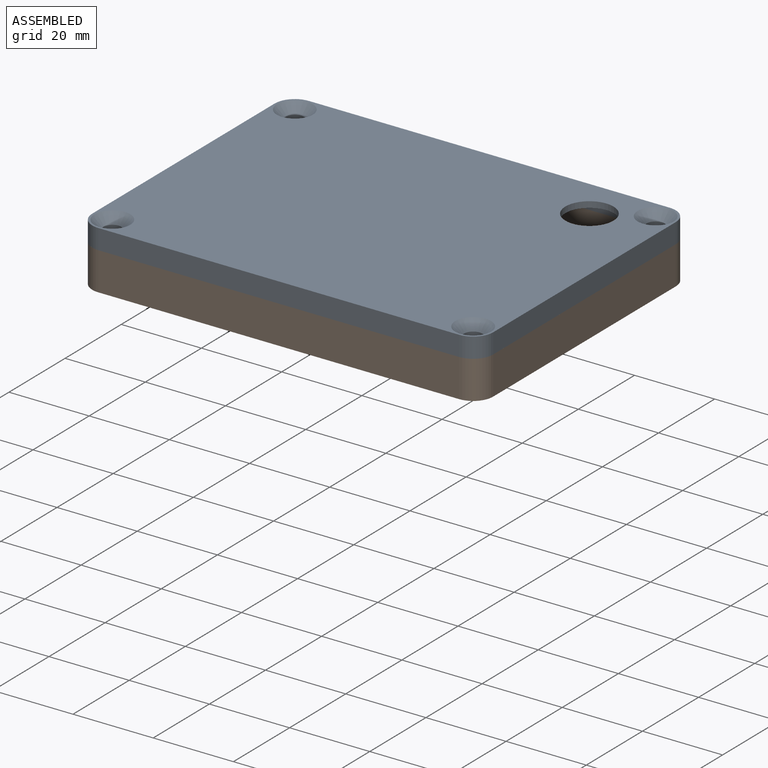
[diagram: assembled view]
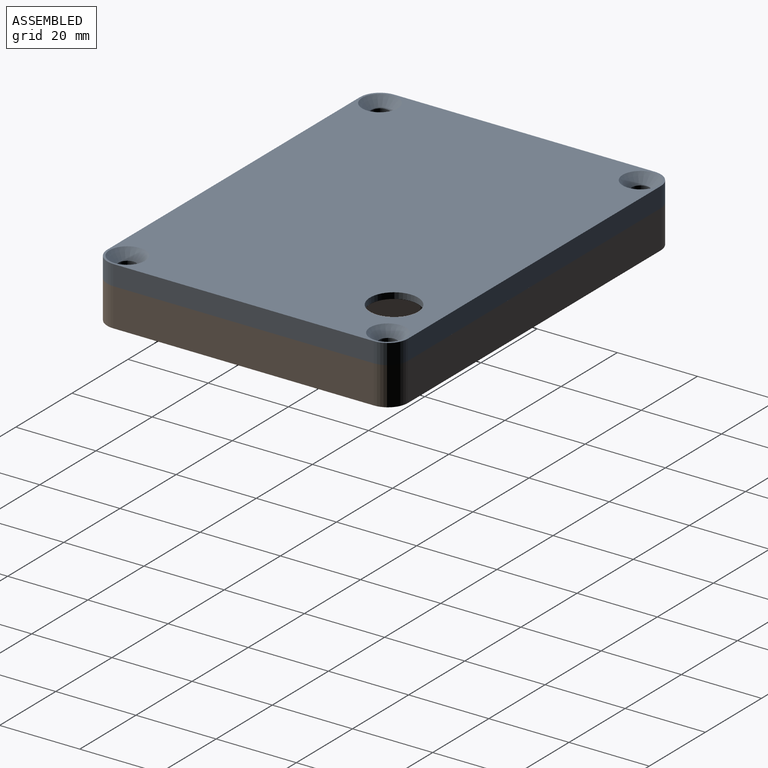
[diagram: assembled view, second angle]
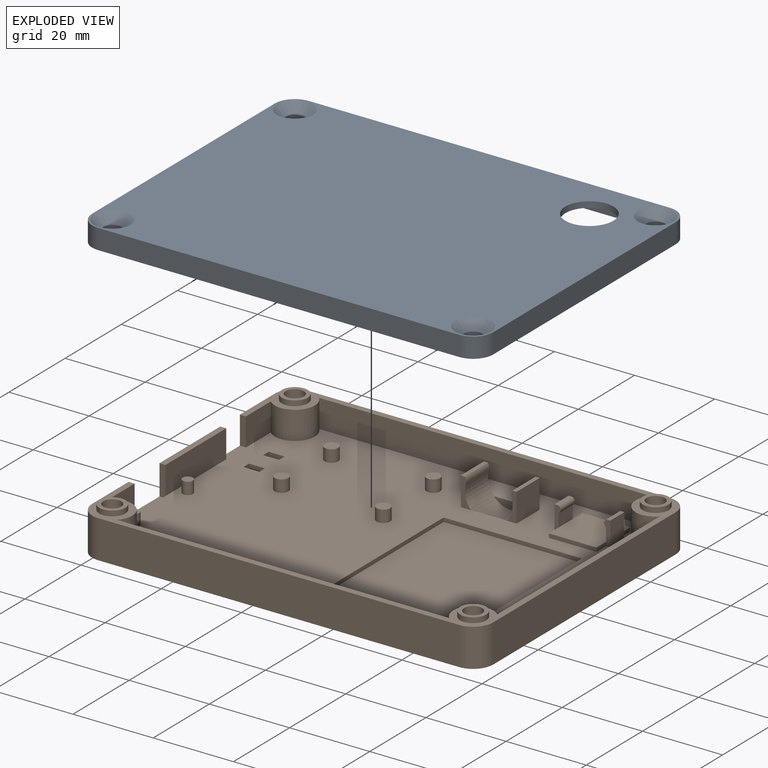
[diagram: exploded view]
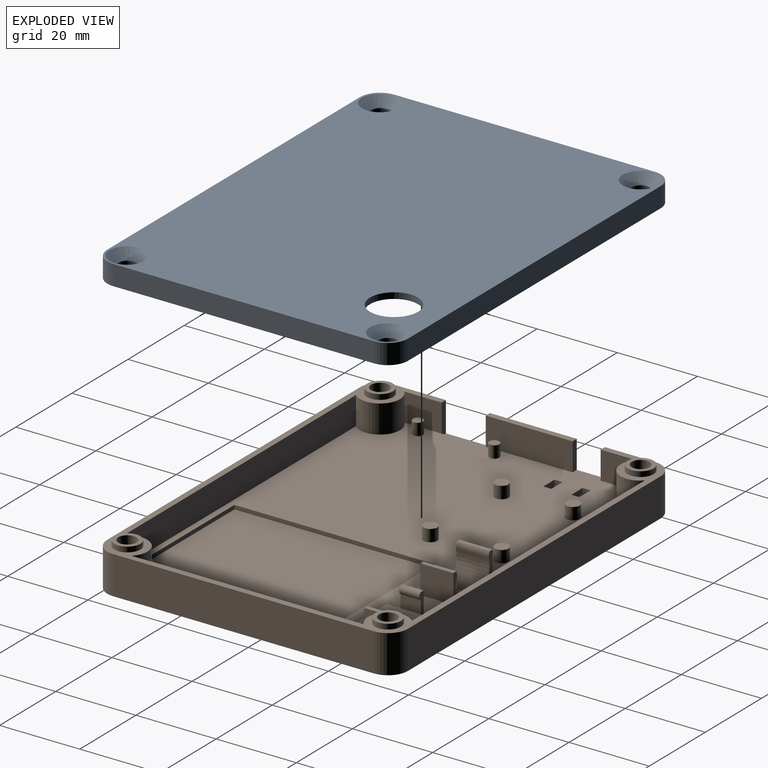
[diagram: exploded view, second angle]
ASSEMBLY  parts=2 mates=2
PART A: 36 faces, bbox 100x75x5 mm
  f0: cylinder r=2.25mm len=4.5mm, axis (0,0,-1), area 18mm2, adj f22,f35
  f1: cylinder r=2.25mm len=4.5mm, axis (0,0,-1), area 18mm2, adj f21,f29
  f2: cylinder r=2.25mm len=4.5mm, axis (0,0,-1), area 18mm2, adj f20,f31
  f3: cylinder r=2.25mm len=4.5mm, axis (0,0,-1), area 18mm2, adj f19,f33
  f4: plane 97x72mm, normal (0,0,-1), area 6615.8mm2, adj f10,f11,f12,f13,f14,f16,f17,f18
  f5: plane 65x5mm, normal (-1,0,0), area 325mm2, adj f9,f15,f24,f27
  f6: plane 90x5mm, normal (0,-1,0), area 450mm2, adj f9,f15,f24,f25
  f7: plane 65x5mm, normal (1,0,0), area 325mm2, adj f9,f15,f25,f26
  f8: plane 90x5mm, normal (0,1,0), area 450mm2, adj f9,f15,f26,f27
  f9: plane 100x75mm, normal (0,0,1), area 7113.2mm2, adj f5,f6,f7,f8,f19,f20,f21,f22
  f10: plane 57.86x3.5mm, normal (1,0,0), area 202.5mm2, adj f4,f11,f15,f17
  f11: cylinder r=5mm len=8.5mm, axis (0,0,-1), area 54.6mm2, adj f4,f10,f12,f15
  f12: plane 82.86x3.5mm, normal (0,-1,0), area 290mm2, adj f4,f11,f13,f15
  f13: cylinder r=5mm len=8.5mm, axis (0,0,-1), area 54.6mm2, adj f4,f12,f14,f15
  f14: plane 57.86x3.5mm, normal (-1,0,0), area 202.5mm2, adj f4,f13,f15,f16
  f15: plane 100x75mm, normal (0,0,-1), area 608.6mm2, adj f5,f6,f7,f8,f10,f11,f12,f13
  f16: cylinder r=5mm len=8.5mm, axis (0,0,-1), area 54.6mm2, adj f4,f14,f15,f18
  f17: cylinder r=5mm len=8.5mm, axis (0,0,-1), area 54.6mm2, adj f4,f10,f15,f18
  f18: plane 82.86x3.5mm, normal (0,1,0), area 290mm2, adj f4,f15,f16,f17
  f19: cone r=2.25mm half-angle=45deg, axis (0,0,1), area 66.7mm2, adj f3,f9
  f20: cone r=2.25mm half-angle=45deg, axis (0,0,1), area 66.7mm2, adj f2,f9
  f21: cone r=2.25mm half-angle=45deg, axis (0,0,1), area 66.7mm2, adj f1,f9
  f22: cone r=2.25mm half-angle=45deg, axis (0,0,1), area 66.7mm2, adj f0,f9
  f23: cylinder r=6mm len=12mm, axis (0,0,1), area 56.5mm2, adj f4,f9
  f24: cylinder r=5mm len=5mm, axis (0,0,1), area 39.3mm2, adj f5,f6,f9,f15
  f25: cylinder r=5mm len=5mm, axis (0,0,-1), area 39.3mm2, adj f6,f7,f9,f15
  f26: cylinder r=5mm len=5mm, axis (0,0,1), area 39.3mm2, adj f7,f8,f9,f15
  f27: cylinder r=5mm len=5mm, axis (0,0,-1), area 39.3mm2, adj f5,f8,f9,f15
  f28: cylinder r=3.35mm len=6.7mm, axis (0,0,-1), area 31.6mm2, adj f15,f29
  f29: plane 6.7x6.7mm, normal (0,0,-1), area 19.4mm2, adj f1,f28
  f30: cylinder r=3.35mm len=6.7mm, axis (0,0,-1), area 31.6mm2, adj f15,f31
  f31: plane 6.7x6.7mm, normal (0,0,-1), area 19.4mm2, adj f2,f30
  f32: cylinder r=3.35mm len=6.7mm, axis (0,0,-1), area 31.6mm2, adj f15,f33
  f33: plane 6.7x6.7mm, normal (0,0,-1), area 19.4mm2, adj f3,f32
  f34: cylinder r=3.35mm len=6.7mm, axis (0,0,-1), area 31.6mm2, adj f15,f35
  f35: plane 6.7x6.7mm, normal (0,0,-1), area 19.4mm2, adj f0,f34
PART B: 127 faces, bbox 100x75x10.8 mm
  f0: plane 98.5x72mm, normal (0,0,1), area 4686.4mm2, adj f1,f7,f8,f9,f10,f11,f12,f13
  f1: plane 65x9.5mm, normal (-1,0,0), area 486mm2, adj f0,f3,f52,f53,f61,f62,f63,f65
  f2: cylinder r=2.25mm len=7.3mm, axis (0,0,1), area 103.2mm2, adj f93,f122
  f3: plane 100x75mm, normal (0,0,-1), area 7275.9mm2, adj f1,f14,f15,f16,f17,f19,f20,f21
  f4: cylinder r=2.25mm len=7.3mm, axis (0,0,1), area 103.2mm2, adj f86,f120
  f5: cylinder r=2.25mm len=7.3mm, axis (0,0,1), area 103.2mm2, adj f79,f124
  f6: cylinder r=2.25mm len=7.3mm, axis (0,0,1), area 103.2mm2, adj f72,f126
  f7: plane 3.45x1mm, normal (1,0,0), area 3.4mm2, adj f0,f35,f37,f49
  f8: plane 3.45x1mm, normal (-1,0,0), area 3.4mm2, adj f0,f35,f37,f43
  f9: plane 8.2x7.15mm, normal (1,0,0), area 58.6mm2, adj f0,f11,f13,f31
  f10: plane 8.2x7.15mm, normal (-1,0,0), area 58.6mm2, adj f0,f12,f25,f32
  f11: plane 7.15x2.5mm, normal (0,-1,0), area 9.5mm2, adj f0,f9,f28,f30,f31
  f12: plane 7.15x2.5mm, normal (0,1,0), area 9.5mm2, adj f0,f10,f28,f29,f32
  f13: plane 7.15x2.5mm, normal (0,1,0), area 9.5mm2, adj f0,f9,f28,f30,f31
  f14: plane 3.5x2.5mm, normal (1,0,0), area 6.1mm2, adj f0,f3,f15,f22,f94
  f15: plane 4x2.5mm, normal (0,-1,0), area 10mm2, adj f0,f3,f14,f16
  f16: plane 3.5x2.5mm, normal (-1,0,0), area 6.1mm2, adj f0,f3,f15,f22,f94
  f17: plane 3.5x2.5mm, normal (1,0,0), area 6.1mm2, adj f0,f3,f18,f23,f95
  f18: plane 4x1mm, normal (0,-1,0), area 4mm2, adj f0,f17,f19,f95
  f19: plane 3.5x2.5mm, normal (-1,0,0), area 6.1mm2, adj f0,f3,f18,f23,f95
  f20: plane 90x9.5mm, normal (0,1,0), area 855mm2, adj f3,f61,f110,f111
  f21: plane 90x9.5mm, normal (0,-1,0), area 855mm2, adj f3,f61,f112,f113
  f22: plane 4x1mm, normal (0,1,0), area 4mm2, adj f0,f14,f16,f94
  f23: plane 4x2.5mm, normal (0,1,0), area 10mm2, adj f0,f3,f17,f19
  f24: plane 65x9.5mm, normal (1,0,0), area 617.5mm2, adj f3,f61,f110,f113
  f25: plane 7.15x2.5mm, normal (0,-1,0), area 9.5mm2, adj f0,f10,f28,f29,f32
  f26: plane 8.9x2mm, normal (0,-1,0), area 12.3mm2, adj f0,f28
  f27: plane 8.9x2mm, normal (0,1,0), area 12.3mm2, adj f0,f28
  f28: cylinder r=5.95mm len=11.9mm, axis (0,-1,0), area 180.3mm2, adj f11,f12,f13,f25,f26,f27,f29,f30
  f29: cylinder r=2mm len=8.2mm, axis (0,-1,0), area 13.4mm2, adj f12,f25,f28,f32
  f30: cylinder r=2mm len=8.2mm, axis (0,1,0), area 13.4mm2, adj f11,f13,f28,f31
  f31: plane 8.2x1.02mm, normal (0,0,1), area 8.4mm2, adj f9,f11,f13,f30
  f32: plane 8.2x1.02mm, normal (0,0,1), area 8.4mm2, adj f10,f12,f25,f29
  f33: plane 11.9x1mm, normal (0,1,0), area 11.9mm2, adj f0,f34,f36,f37
  f34: plane 3.45x1mm, normal (-1,0,0), area 3.4mm2, adj f0,f33,f37,f42
  f35: plane 11.9x1mm, normal (0,-1,0), area 11.9mm2, adj f0,f7,f8,f37
  f36: plane 3.45x1mm, normal (1,0,0), area 3.4mm2, adj f0,f33,f37,f48
  f37: plane 11.9x11.9mm, normal (0,0,1), area 141.6mm2, adj f7,f8,f33,f34,f35,f36,f38,f44
  f38: plane 5x3.2mm, normal (1,0,0), area 16mm2, adj f37,f39,f42,f43
  f39: cylinder r=1.06mm len=5mm, axis (0,-1,0), area 10.8mm2, adj f38,f40,f42,f43
  f40: plane 5x1mm, normal (0,0,1), area 5mm2, adj f39,f41,f42,f43
  f41: plane 6x5mm, normal (-1,0,0), area 30mm2, adj f0,f40,f42,f43
  f42: plane 6x1.5mm, normal (0,1,0), area 6.6mm2, adj f0,f34,f38,f39,f40,f41
  f43: plane 6x1.5mm, normal (0,-1,0), area 6.6mm2, adj f0,f8,f38,f39,f40,f41
  f44: plane 5x3.2mm, normal (-1,0,0), area 16mm2, adj f37,f45,f48,f49
  f45: cylinder r=1.06mm len=5mm, axis (0,-1,0), area 10.8mm2, adj f44,f47,f48,f49
  f46: plane 6x5mm, normal (1,0,0), area 30mm2, adj f0,f47,f48,f49
  f47: plane 5x1mm, normal (0,0,1), area 5mm2, adj f45,f46,f48,f49
  f48: plane 6x1.5mm, normal (0,1,0), area 6.6mm2, adj f0,f36,f44,f45,f46,f47
  f49: plane 6x1.5mm, normal (0,-1,0), area 6.6mm2, adj f0,f7,f44,f45,f46,f47
  f50: cylinder r=5mm len=8.5mm, axis (0,0,-1), area 109.3mm2, adj f0,f51,f60,f61
  f51: plane 9.36x7mm, normal (1,0,0), area 65.5mm2, adj f0,f50,f52,f61
  f52: plane 7.5x1.5mm, normal (0,1,0), area 11.3mm2, adj f1,f51,f61,f96,f97
  f53: plane 7x1.5mm, normal (0,-1,0), area 10.5mm2, adj f0,f1,f54,f61
  f54: plane 8.86x7mm, normal (1,0,0), area 62mm2, adj f0,f53,f55,f61
  f55: cylinder r=5mm len=8.5mm, axis (0,0,-1), area 109.3mm2, adj f0,f54,f56,f61
  f56: plane 82.86x7mm, normal (0,-1,0), area 580mm2, adj f0,f55,f57,f61
  f57: cylinder r=5mm len=8.5mm, axis (0,0,-1), area 109.3mm2, adj f0,f56,f58,f61
  f58: plane 57.86x7mm, normal (-1,0,0), area 405mm2, adj f0,f57,f59,f61
  f59: cylinder r=5mm len=8.5mm, axis (0,0,-1), area 109.3mm2, adj f0,f58,f60,f61
  f60: plane 82.86x7mm, normal (0,1,0), area 580mm2, adj f0,f50,f59,f61
  f61: plane 100x75mm, normal (0,0,1), area 557.4mm2, adj f1,f20,f21,f24,f50,f51,f52,f53
  f62: plane 7x1.5mm, normal (0,1,0), area 10.5mm2, adj f0,f1,f64,f65
  f63: plane 7.5x1.5mm, normal (0,-1,0), area 11.3mm2, adj f1,f64,f65,f96,f97
  f64: plane 21.64x7mm, normal (1,0,0), area 151.5mm2, adj f0,f62,f63,f65
  f65: plane 21.64x1.5mm, normal (0,0,1), area 32.5mm2, adj f1,f62,f63,f64
  f66: plane 3.55x3.5mm, normal (-0.5,-0.87,0), area 14.3mm2, adj f3,f67,f71,f72
  f67: plane 4.1x3.5mm, normal (-1,0,0), area 14.3mm2, adj f3,f66,f68,f72
  f68: plane 3.55x3.5mm, normal (-0.5,0.87,0), area 14.3mm2, adj f3,f67,f69,f72
  f69: plane 3.55x3.5mm, normal (0.5,0.87,0), area 14.3mm2, adj f3,f68,f70,f72
  f70: plane 4.1x3.5mm, normal (1,0,0), area 14.3mm2, adj f3,f69,f71,f72
  f71: plane 3.55x3.5mm, normal (0.5,-0.87,0), area 14.3mm2, adj f3,f66,f70,f72
  f72: plane 8.2x7.1mm, normal (0,0,-1), area 27.8mm2, adj f6,f66,f67,f68,f69,f70,f71
  f73: plane 3.55x3.5mm, normal (0.5,-0.87,0), area 14.3mm2, adj f3,f74,f78,f79
  f74: plane 3.55x3.5mm, normal (-0.5,-0.87,0), area 14.3mm2, adj f3,f73,f75,f79
  f75: plane 4.1x3.5mm, normal (-1,0,0), area 14.3mm2, adj f3,f74,f76,f79
  f76: plane 3.55x3.5mm, normal (-0.5,0.87,0), area 14.3mm2, adj f3,f75,f77,f79
  f77: plane 3.55x3.5mm, normal (0.5,0.87,0), area 14.3mm2, adj f3,f76,f78,f79
  f78: plane 4.1x3.5mm, normal (1,0,0), area 14.3mm2, adj f3,f73,f77,f79
  f79: plane 8.2x7.1mm, normal (0,0,-1), area 27.8mm2, adj f5,f73,f74,f75,f76,f77,f78
  f80: plane 3.55x3.5mm, normal (-0.5,0.87,0), area 14.3mm2, adj f3,f81,f85,f86
  f81: plane 3.55x3.5mm, normal (0.5,0.87,0), area 14.3mm2, adj f3,f80,f82,f86
  f82: plane 4.1x3.5mm, normal (1,0,0), area 14.3mm2, adj f3,f81,f83,f86
  f83: plane 3.55x3.5mm, normal (0.5,-0.87,0), area 14.3mm2, adj f3,f82,f84,f86
  f84: plane 3.55x3.5mm, normal (-0.5,-0.87,0), area 14.3mm2, adj f3,f83,f85,f86
  f85: plane 4.1x3.5mm, normal (-1,0,0), area 14.3mm2, adj f3,f80,f84,f86
  f86: plane 8.2x7.1mm, normal (0,0,-1), area 27.8mm2, adj f4,f80,f81,f82,f83,f84,f85
  f87: plane 3.55x3.5mm, normal (0.5,0.87,0), area 14.3mm2, adj f3,f88,f92,f93
  f88: plane 4.1x3.5mm, normal (1,0,0), area 14.3mm2, adj f3,f87,f89,f93
  f89: plane 3.55x3.5mm, normal (0.5,-0.87,0), area 14.3mm2, adj f3,f88,f90,f93
  f90: plane 3.55x3.5mm, normal (-0.5,-0.87,0), area 14.3mm2, adj f3,f89,f91,f93
  f91: plane 4.1x3.5mm, normal (-1,0,0), area 14.3mm2, adj f3,f90,f92,f93
  f92: plane 3.55x3.5mm, normal (-0.5,0.87,0), area 14.3mm2, adj f3,f87,f91,f93
  f93: plane 8.2x7.1mm, normal (0,0,-1), area 27.8mm2, adj f2,f87,f88,f89,f90,f91,f92
  f94: plane 4x1.5mm, normal (0,0.71,-0.71), area 8.5mm2, adj f3,f14,f16,f22
  f95: plane 4x1.5mm, normal (0,-0.71,-0.71), area 8.5mm2, adj f3,f17,f18,f19
  f96: plane 11x0.5mm, normal (-1,0,0), area 5.5mm2, adj f0,f52,f63,f97
  f97: plane 11x1.5mm, normal (0,0,1), area 16.5mm2, adj f1,f52,f63,f96
  f98: cylinder r=1.27mm len=3mm, axis (0,0,-1), area 23.9mm2, adj f0,f99
  f99: plane 2.54x2.54mm, normal (0,0,1), area 5.1mm2, adj f98
  f100: cylinder r=1.27mm len=3mm, axis (0,0,-1), area 23.9mm2, adj f0,f101
  f101: plane 2.54x2.54mm, normal (0,0,1), area 5.1mm2, adj f100
  f102: cylinder r=1.7mm len=3.4mm, axis (0,0,-1), area 32mm2, adj f0,f103
  f103: plane 3.4x3.4mm, normal (0,0,1), area 9.1mm2, adj f102
  f104: cylinder r=1.7mm len=3.4mm, axis (0,0,-1), area 32mm2, adj f0,f105
  f105: plane 3.4x3.4mm, normal (0,0,1), area 9.1mm2, adj f104
  f106: cylinder r=1.7mm len=3.4mm, axis (0,0,-1), area 32mm2, adj f0,f107
  f107: plane 3.4x3.4mm, normal (0,0,1), area 9.1mm2, adj f106
  f108: cylinder r=1.7mm len=3.4mm, axis (0,0,-1), area 32mm2, adj f0,f109
  f109: plane 3.4x3.4mm, normal (0,0,1), area 9.1mm2, adj f108
  f110: cylinder r=5mm len=9.5mm, axis (0,0,1), area 74.6mm2, adj f3,f20,f24,f61
  f111: cylinder r=5mm len=9.5mm, axis (0,0,-1), area 74.6mm2, adj f1,f3,f20,f61
  f112: cylinder r=5mm len=9.5mm, axis (0,0,1), area 74.6mm2, adj f1,f3,f21,f61
  f113: cylinder r=5mm len=9.5mm, axis (0,0,-1), area 74.6mm2, adj f3,f21,f24,f61
  f114: plane 34.5x1mm, normal (0,-1,0), area 34.5mm2, adj f0,f115,f117,f118
  f115: plane 50x1mm, normal (1,0,0), area 50mm2, adj f0,f114,f116,f118
  f116: plane 34.5x1mm, normal (0,1,0), area 34.5mm2, adj f0,f115,f117,f118
  f117: plane 50x1mm, normal (-1,0,0), area 50mm2, adj f0,f114,f116,f118
  f118: plane 50x34.5mm, normal (0,0,1), area 1725mm2, adj f114,f115,f116,f117
  f119: cylinder r=3.25mm len=6.5mm, axis (0,0,-1), area 26.5mm2, adj f61,f120
  f120: plane 6.5x6.5mm, normal (0,0,1), area 17.3mm2, adj f4,f119
  f121: cylinder r=3.25mm len=6.5mm, axis (0,0,-1), area 26.5mm2, adj f61,f122
  f122: plane 6.5x6.5mm, normal (0,0,1), area 17.3mm2, adj f2,f121
  f123: cylinder r=3.25mm len=6.5mm, axis (0,0,-1), area 26.5mm2, adj f61,f124
  f124: plane 6.5x6.5mm, normal (0,0,1), area 17.3mm2, adj f5,f123
  f125: cylinder r=3.25mm len=6.5mm, axis (0,0,-1), area 26.5mm2, adj f61,f126
  f126: plane 6.5x6.5mm, normal (0,0,1), area 17.3mm2, adj f6,f125
PLACE A t=(8.89,-1.92,10.5)mm
PLACE B t=(8.89,-1.92,0)mm
MATE parallel B.f37 <-> A.f9  axis (0,0,1) through (42.09,23.83,1)mm
MATE slider A.f2 <-> B.f5  axis (0,0,1) through (53.89,-34.42,9.77)mm
